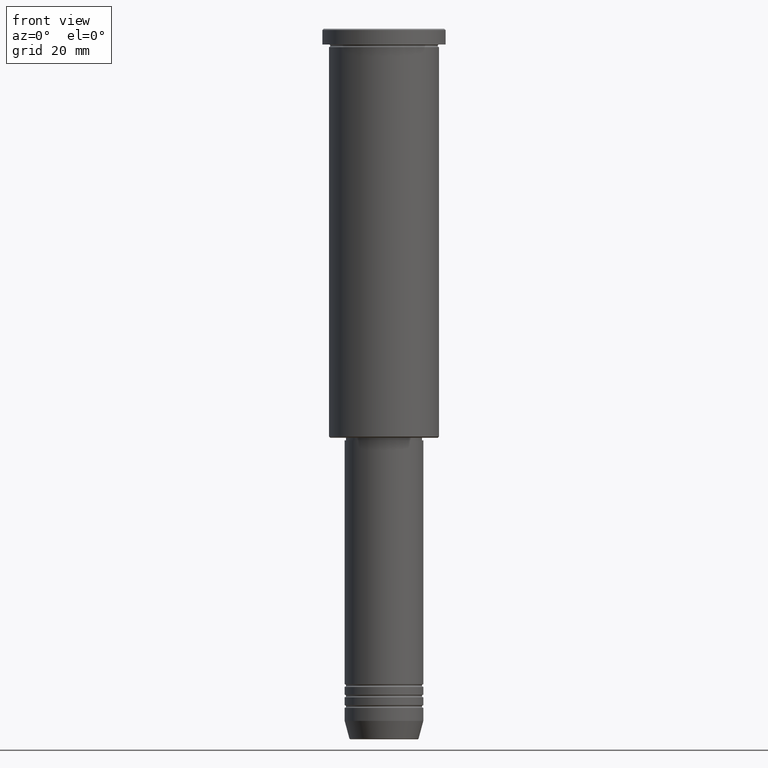
[diagram: clean part render]
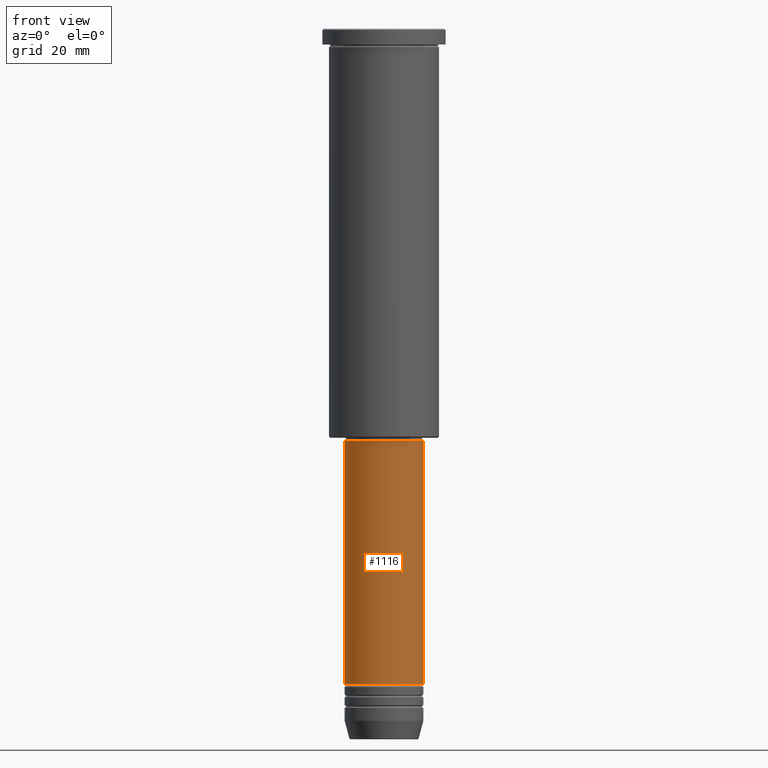
[diagram: same view with one face highlighted and labeled with its STEP entity id]
A machine part, front view. The second image highlights one B-rep face of the part: STEP entity #1116.
In plain terms, the highlighted cylindrical surface (partial cylindrical patch) has radius 15 mm, axis along (-0, -0, 1).
Its self-contained STEP definition (entity closure, byte-faithful):
#3 = VERTEX_POINT ( 'NONE', #803 ) ;
#4 = AXIS2_PLACEMENT_3D ( 'NONE', #683, #153, #880 ) ;
#47 = EDGE_LOOP ( 'NONE', ( #1082, #781, #934, #345 ) ) ;
#49 = VERTEX_POINT ( 'NONE', #668 ) ;
#54 = CARTESIAN_POINT ( 'NONE',  ( -15.00000000000000000, 1.836970198721029589E-15, 0.000000000000000000 ) ) ;
#132 = DIRECTION ( 'NONE',  ( -0.000000000000000000, -0.000000000000000000, 1.000000000000000000 ) ) ;
#144 = DIRECTION ( 'NONE',  ( -0.000000000000000000, -0.000000000000000000, 1.000000000000000000 ) ) ;
#153 = DIRECTION ( 'NONE',  ( -0.000000000000000000, -0.000000000000000000, 1.000000000000000000 ) ) ;
#178 = VECTOR ( 'NONE', #144, 1000.000000000000000 ) ;
#194 = CYLINDRICAL_SURFACE ( 'NONE', #773, 15.00000000000000000 ) ;
#221 = EDGE_CURVE ( 'NONE', #690, #3, #764, .T. ) ;
#301 = DIRECTION ( 'NONE',  ( 1.000000000000000000, 0.000000000000000000, 0.000000000000000000 ) ) ;
#345 = ORIENTED_EDGE ( 'NONE', *, *, #692, .F. ) ;
#384 = CARTESIAN_POINT ( 'NONE',  ( 0.000000000000000000, 0.000000000000000000, -249.9999999999999147 ) ) ;
#385 = CARTESIAN_POINT ( 'NONE',  ( -15.00000000000000000, 1.836970198721029589E-15, -157.0000000000000000 ) ) ;
#446 = DIRECTION ( 'NONE',  ( -0.000000000000000000, -0.000000000000000000, 1.000000000000000000 ) ) ;
#537 = EDGE_CURVE ( 'NONE', #49, #1013, #891, .T. ) ;
#581 = DIRECTION ( 'NONE',  ( 1.000000000000000000, 0.000000000000000000, 0.000000000000000000 ) ) ;
#618 = EDGE_CURVE ( 'NONE', #49, #690, #1091, .T. ) ;
#668 = CARTESIAN_POINT ( 'NONE',  ( -15.00000000000000000, 1.836970198721029589E-15, -249.9999999999999147 ) ) ;
#683 = CARTESIAN_POINT ( 'NONE',  ( 0.000000000000000000, 0.000000000000000000, -157.0000000000000000 ) ) ;
#690 = VERTEX_POINT ( 'NONE', #780 ) ;
#692 = EDGE_CURVE ( 'NONE', #1013, #3, #844, .T. ) ;
#703 = CARTESIAN_POINT ( 'NONE',  ( 15.00000000000000000, 0.000000000000000000, 0.000000000000000000 ) ) ;
#762 = CARTESIAN_POINT ( 'NONE',  ( 0.000000000000000000, 0.000000000000000000, 0.000000000000000000 ) ) ;
#764 = LINE ( 'NONE', #703, #842 ) ;
#773 = AXIS2_PLACEMENT_3D ( 'NONE', #762, #1119, #301 ) ;
#780 = CARTESIAN_POINT ( 'NONE',  ( 15.00000000000000000, 0.000000000000000000, -249.9999999999999147 ) ) ;
#781 = ORIENTED_EDGE ( 'NONE', *, *, #618, .T. ) ;
#803 = CARTESIAN_POINT ( 'NONE',  ( 15.00000000000000000, 0.000000000000000000, -157.0000000000000000 ) ) ;
#842 = VECTOR ( 'NONE', #132, 1000.000000000000000 ) ;
#844 = CIRCLE ( 'NONE', #4, 15.00000000000000000 ) ;
#852 = FACE_OUTER_BOUND ( 'NONE', #47, .T. ) ;
#880 = DIRECTION ( 'NONE',  ( 1.000000000000000000, 0.000000000000000000, 0.000000000000000000 ) ) ;
#891 = LINE ( 'NONE', #54, #178 ) ;
#934 = ORIENTED_EDGE ( 'NONE', *, *, #221, .T. ) ;
#940 = AXIS2_PLACEMENT_3D ( 'NONE', #384, #446, #581 ) ;
#1013 = VERTEX_POINT ( 'NONE', #385 ) ;
#1082 = ORIENTED_EDGE ( 'NONE', *, *, #537, .F. ) ;
#1091 = CIRCLE ( 'NONE', #940, 15.00000000000000000 ) ;
#1116 = ADVANCED_FACE ( 'NONE', ( #852 ), #194, .T. ) ;
#1119 = DIRECTION ( 'NONE',  ( -0.000000000000000000, -0.000000000000000000, 1.000000000000000000 ) ) ;